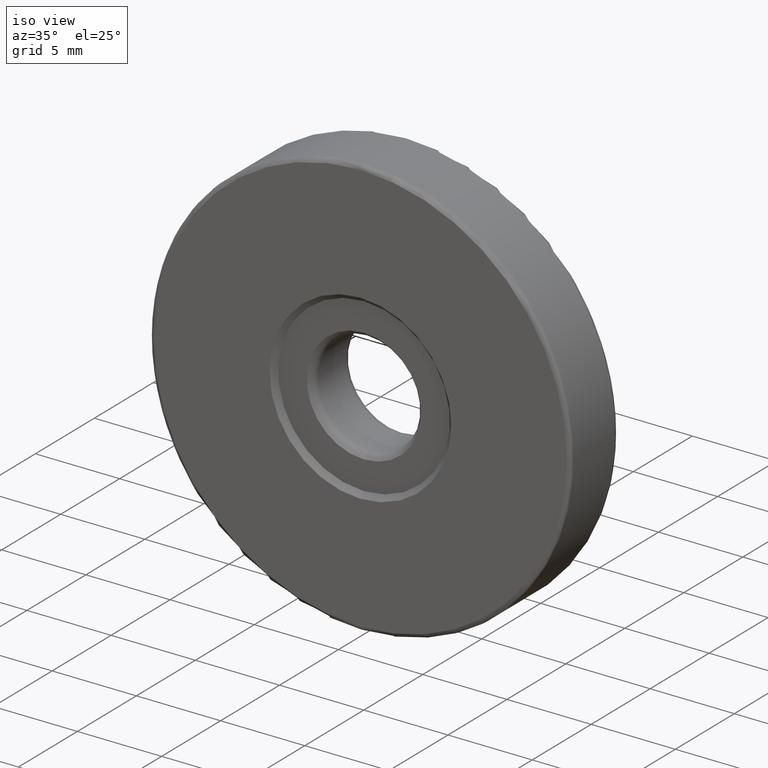
[diagram: clean part render]
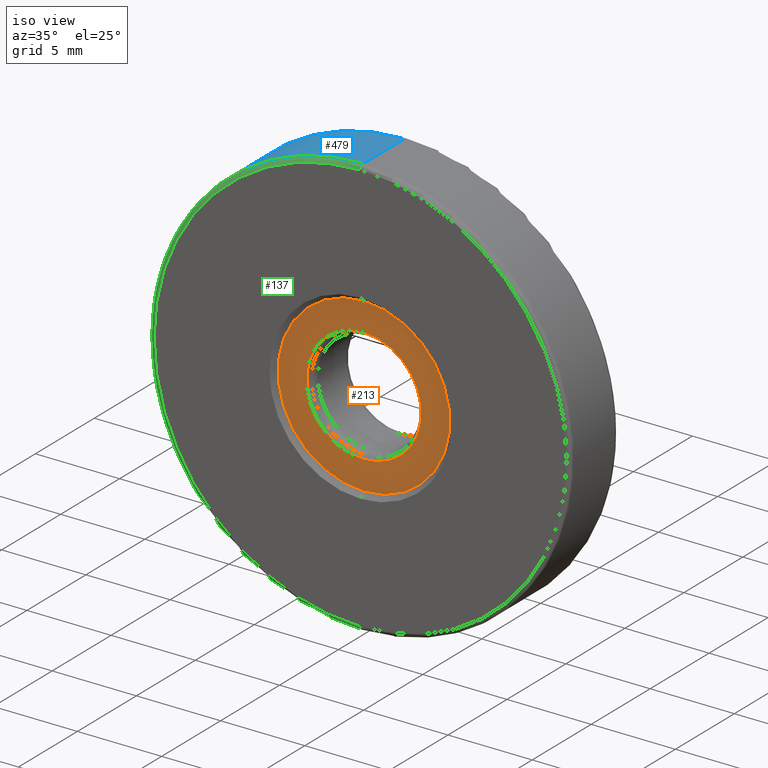
[diagram: same view with three faces highlighted in distinct colors, each labeled with its STEP entity id]
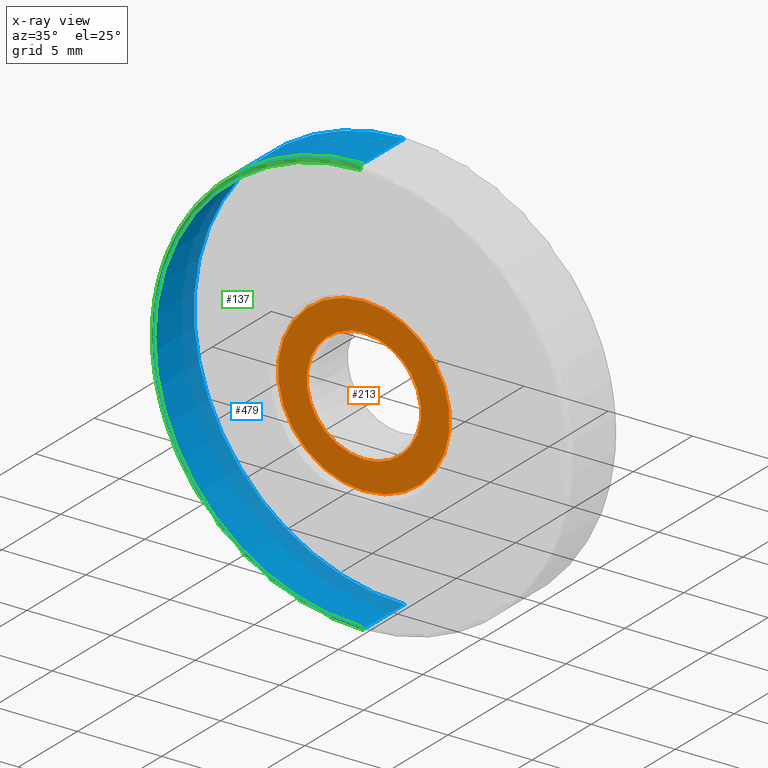
[diagram: x-ray of the same camera — body ghosted, the three highlighted faces saturated]
A machine part, iso view with three faces highlighted in distinct colors.
The next image is the same camera in x-ray (body ghosted, the three faces saturated) — at least one of them is partly hidden behind the body in this view.
Their STEP definitions:

[orange] entity #213 — the highlighted planar face has unit normal (0, -1, 0).
#5 = PLANE ( 'NONE',  #410 ) ;
#42 = CIRCLE ( 'NONE', #526, 5.100000000000000533 ) ;
#44 = CARTESIAN_POINT ( 'NONE',  ( -4.682026255059963837, -3.294975976998275158, 30.10000000000000142 ) ) ;
#68 = CARTESIAN_POINT ( 'NONE',  ( -4.682026255059964726, -3.294975976998275158, 28.40000000000000568 ) ) ;
#96 = CIRCLE ( 'NONE', #275, 3.400000000000003908 ) ;
#112 = FACE_OUTER_BOUND ( 'NONE', #670, .T. ) ;
#120 = CARTESIAN_POINT ( 'NONE',  ( -4.682026255059964726, -3.294975976998275158, 21.59999999999999787 ) ) ;
#160 = VERTEX_POINT ( 'NONE', #544 ) ;
#180 = VERTEX_POINT ( 'NONE', #44 ) ;
#207 = DIRECTION ( 'NONE',  ( -0.0000000000000000000, 1.000000000000000000, -0.0000000000000000000 ) ) ;
#213 = ADVANCED_FACE ( 'NONE', ( #624, #112 ), #5, .T. ) ;
#219 = AXIS2_PLACEMENT_3D ( 'NONE', #309, #245, #531 ) ;
#226 = CARTESIAN_POINT ( 'NONE',  ( -4.682026255059964726, -3.294975976998275158, 25.00000000000000000 ) ) ;
#245 = DIRECTION ( 'NONE',  ( -0.0000000000000000000, 1.000000000000000000, -0.0000000000000000000 ) ) ;
#247 = VERTEX_POINT ( 'NONE', #68 ) ;
#265 = EDGE_LOOP ( 'NONE', ( #636, #379 ) ) ;
#269 = ORIENTED_EDGE ( 'NONE', *, *, #585, .F. ) ;
#275 = AXIS2_PLACEMENT_3D ( 'NONE', #642, #207, #328 ) ;
#277 = CIRCLE ( 'NONE', #219, 3.400000000000003908 ) ;
#288 = DIRECTION ( 'NONE',  ( 0.0000000000000000000, -1.000000000000000000, 0.0000000000000000000 ) ) ;
#304 = CIRCLE ( 'NONE', #690, 5.100000000000000533 ) ;
#309 = CARTESIAN_POINT ( 'NONE',  ( -4.682026255059964726, -3.294975976998275158, 25.00000000000000000 ) ) ;
#328 = DIRECTION ( 'NONE',  ( 0.0000000000000000000, 0.0000000000000000000, -1.000000000000000000 ) ) ;
#347 = CARTESIAN_POINT ( 'NONE',  ( -4.682026255059964726, -3.294975976998275158, 25.00000000000000000 ) ) ;
#379 = ORIENTED_EDGE ( 'NONE', *, *, #538, .T. ) ;
#383 = EDGE_CURVE ( 'NONE', #160, #180, #304, .T. ) ;
#410 = AXIS2_PLACEMENT_3D ( 'NONE', #226, #288, #627 ) ;
#413 = DIRECTION ( 'NONE',  ( 0.0000000000000000000, 0.0000000000000000000, 1.000000000000000000 ) ) ;
#441 = DIRECTION ( 'NONE',  ( -0.0000000000000000000, 1.000000000000000000, -0.0000000000000000000 ) ) ;
#509 = DIRECTION ( 'NONE',  ( 0.0000000000000000000, 0.0000000000000000000, 1.000000000000000000 ) ) ;
#526 = AXIS2_PLACEMENT_3D ( 'NONE', #688, #579, #413 ) ;
#531 = DIRECTION ( 'NONE',  ( 0.0000000000000000000, 0.0000000000000000000, -1.000000000000000000 ) ) ;
#538 = EDGE_CURVE ( 'NONE', #247, #601, #277, .T. ) ;
#544 = CARTESIAN_POINT ( 'NONE',  ( -4.682026255059964726, -3.294975976998275158, 19.90000000000000213 ) ) ;
#579 = DIRECTION ( 'NONE',  ( -0.0000000000000000000, 1.000000000000000000, -0.0000000000000000000 ) ) ;
#585 = EDGE_CURVE ( 'NONE', #180, #160, #42, .T. ) ;
#598 = ORIENTED_EDGE ( 'NONE', *, *, #383, .F. ) ;
#601 = VERTEX_POINT ( 'NONE', #120 ) ;
#624 = FACE_BOUND ( 'NONE', #265, .T. ) ;
#627 = DIRECTION ( 'NONE',  ( 0.0000000000000000000, 0.0000000000000000000, 1.000000000000000000 ) ) ;
#633 = EDGE_CURVE ( 'NONE', #601, #247, #96, .T. ) ;
#636 = ORIENTED_EDGE ( 'NONE', *, *, #633, .T. ) ;
#642 = CARTESIAN_POINT ( 'NONE',  ( -4.682026255059964726, -3.294975976998275158, 25.00000000000000000 ) ) ;
#670 = EDGE_LOOP ( 'NONE', ( #598, #269 ) ) ;
#688 = CARTESIAN_POINT ( 'NONE',  ( -4.682026255059964726, -3.294975976998275158, 25.00000000000000000 ) ) ;
#690 = AXIS2_PLACEMENT_3D ( 'NONE', #347, #441, #509 ) ;

[blue] entity #479 — the highlighted cylindrical surface (partial cylindrical patch) has radius 12.5 mm, axis along (-0, -1, -0).
#23 = DIRECTION ( 'NONE',  ( 0.0000000000000000000, 0.0000000000000000000, 1.000000000000000000 ) ) ;
#27 = AXIS2_PLACEMENT_3D ( 'NONE', #630, #421, #303 ) ;
#35 = CARTESIAN_POINT ( 'NONE',  ( -4.682026255059964726, 0.1550240230017252141, 37.50000000000000711 ) ) ;
#38 = AXIS2_PLACEMENT_3D ( 'NONE', #356, #194, #23 ) ;
#40 = CARTESIAN_POINT ( 'NONE',  ( -4.682026255059962949, -3.344975976998274980, 12.50000000000000000 ) ) ;
#50 = VERTEX_POINT ( 'NONE', #674 ) ;
#76 = DIRECTION ( 'NONE',  ( -0.0000000000000000000, -1.000000000000000000, -0.0000000000000000000 ) ) ;
#88 = DIRECTION ( 'NONE',  ( 0.0000000000000000000, 0.0000000000000000000, 1.000000000000000000 ) ) ;
#128 = VERTEX_POINT ( 'NONE', #40 ) ;
#156 = ORIENTED_EDGE ( 'NONE', *, *, #270, .T. ) ;
#162 = EDGE_CURVE ( 'NONE', #604, #50, #164, .T. ) ;
#164 = LINE ( 'NONE', #320, #671 ) ;
#194 = DIRECTION ( 'NONE',  ( -0.0000000000000000000, -1.000000000000000000, -0.0000000000000000000 ) ) ;
#237 = DIRECTION ( 'NONE',  ( 0.0000000000000000000, 1.000000000000000000, 0.0000000000000000000 ) ) ;
#270 = EDGE_CURVE ( 'NONE', #497, #128, #619, .T. ) ;
#303 = DIRECTION ( 'NONE',  ( 0.0000000000000000000, 0.0000000000000000000, -1.000000000000000000 ) ) ;
#320 = CARTESIAN_POINT ( 'NONE',  ( -4.682026255059962949, 0.4050240230017252419, 37.50000000000000711 ) ) ;
#356 = CARTESIAN_POINT ( 'NONE',  ( -4.682026255059964726, 0.1550240230017252141, 25.00000000000000000 ) ) ;
#359 = CARTESIAN_POINT ( 'NONE',  ( -4.682026255059964726, -3.344975976998274980, 25.00000000000000000 ) ) ;
#407 = FACE_OUTER_BOUND ( 'NONE', #455, .T. ) ;
#411 = AXIS2_PLACEMENT_3D ( 'NONE', #359, #237, #88 ) ;
#420 = ORIENTED_EDGE ( 'NONE', *, *, #551, .T. ) ;
#421 = DIRECTION ( 'NONE',  ( -0.0000000000000000000, -1.000000000000000000, -0.0000000000000000000 ) ) ;
#455 = EDGE_LOOP ( 'NONE', ( #610, #420, #156, #539 ) ) ;
#478 = CIRCLE ( 'NONE', #411, 12.50000000000000355 ) ;
#479 = ADVANCED_FACE ( 'NONE', ( #407 ), #693, .T. ) ;
#497 = VERTEX_POINT ( 'NONE', #582 ) ;
#506 = EDGE_CURVE ( 'NONE', #128, #50, #478, .T. ) ;
#539 = ORIENTED_EDGE ( 'NONE', *, *, #506, .T. ) ;
#540 = DIRECTION ( 'NONE',  ( -0.0000000000000000000, -1.000000000000000000, -0.0000000000000000000 ) ) ;
#551 = EDGE_CURVE ( 'NONE', #604, #497, #660, .T. ) ;
#576 = CARTESIAN_POINT ( 'NONE',  ( -4.682026255059964726, 0.4050240230017252419, 12.50000000000000000 ) ) ;
#582 = CARTESIAN_POINT ( 'NONE',  ( -4.682026255059962949, 0.1550240230017252141, 12.50000000000000000 ) ) ;
#604 = VERTEX_POINT ( 'NONE', #35 ) ;
#610 = ORIENTED_EDGE ( 'NONE', *, *, #162, .F. ) ;
#619 = LINE ( 'NONE', #576, #651 ) ;
#630 = CARTESIAN_POINT ( 'NONE',  ( -4.682026255059964726, 0.4050240230017252419, 25.00000000000000000 ) ) ;
#651 = VECTOR ( 'NONE', #76, 1000.000000000000000 ) ;
#660 = CIRCLE ( 'NONE', #38, 12.50000000000000355 ) ;
#671 = VECTOR ( 'NONE', #540, 1000.000000000000000 ) ;
#674 = CARTESIAN_POINT ( 'NONE',  ( -4.682026255059964726, -3.344975976998274980, 37.50000000000000711 ) ) ;
#693 = CYLINDRICAL_SURFACE ( 'NONE', #27, 12.50000000000000000 ) ;

[green] entity #137 — the highlighted toroidal blend (fillet) surface has major radius 12.25 mm and minor (blend) radius 0.25 mm.
#4 = VERTEX_POINT ( 'NONE', #6 ) ;
#6 = CARTESIAN_POINT ( 'NONE',  ( -4.682026255059964726, -3.594975976998274980, 37.25000000000000711 ) ) ;
#37 = CARTESIAN_POINT ( 'NONE',  ( -4.682026255059964726, -3.344975976998274980, 25.00000000000000000 ) ) ;
#39 = ORIENTED_EDGE ( 'NONE', *, *, #327, .F. ) ;
#40 = CARTESIAN_POINT ( 'NONE',  ( -4.682026255059962949, -3.344975976998274980, 12.50000000000000000 ) ) ;
#50 = VERTEX_POINT ( 'NONE', #674 ) ;
#75 = EDGE_CURVE ( 'NONE', #4, #50, #596, .T. ) ;
#78 = ORIENTED_EDGE ( 'NONE', *, *, #75, .T. ) ;
#88 = DIRECTION ( 'NONE',  ( 0.0000000000000000000, 0.0000000000000000000, 1.000000000000000000 ) ) ;
#89 = DIRECTION ( 'NONE',  ( 0.0000000000000000000, 0.0000000000000000000, 1.000000000000000000 ) ) ;
#103 = FACE_OUTER_BOUND ( 'NONE', #717, .T. ) ;
#128 = VERTEX_POINT ( 'NONE', #40 ) ;
#137 = ADVANCED_FACE ( 'NONE', ( #103 ), #515, .T. ) ;
#172 = DIRECTION ( 'NONE',  ( 0.0000000000000000000, 0.0000000000000000000, -1.000000000000000000 ) ) ;
#192 = CARTESIAN_POINT ( 'NONE',  ( -4.682026255059962949, -3.594975976998274980, 12.75000000000000178 ) ) ;
#211 = DIRECTION ( 'NONE',  ( 0.0000000000000000000, 1.000000000000000000, 0.0000000000000000000 ) ) ;
#237 = DIRECTION ( 'NONE',  ( 0.0000000000000000000, 1.000000000000000000, 0.0000000000000000000 ) ) ;
#267 = AXIS2_PLACEMENT_3D ( 'NONE', #37, #211, #89 ) ;
#283 = CARTESIAN_POINT ( 'NONE',  ( -4.682026255059964726, -3.594975976998274980, 25.00000000000000000 ) ) ;
#290 = CIRCLE ( 'NONE', #640, 0.2500000000000002220 ) ;
#327 = EDGE_CURVE ( 'NONE', #4, #564, #574, .T. ) ;
#331 = AXIS2_PLACEMENT_3D ( 'NONE', #366, #655, #603 ) ;
#359 = CARTESIAN_POINT ( 'NONE',  ( -4.682026255059964726, -3.344975976998274980, 25.00000000000000000 ) ) ;
#366 = CARTESIAN_POINT ( 'NONE',  ( -4.682026255059964726, -3.344975976998274980, 37.25000000000000711 ) ) ;
#390 = DIRECTION ( 'NONE',  ( 1.000000000000000000, -0.0000000000000000000, 1.224646799147353207E-16 ) ) ;
#406 = ORIENTED_EDGE ( 'NONE', *, *, #712, .F. ) ;
#411 = AXIS2_PLACEMENT_3D ( 'NONE', #359, #237, #88 ) ;
#434 = ORIENTED_EDGE ( 'NONE', *, *, #506, .F. ) ;
#478 = CIRCLE ( 'NONE', #411, 12.50000000000000355 ) ;
#506 = EDGE_CURVE ( 'NONE', #128, #50, #478, .T. ) ;
#511 = DIRECTION ( 'NONE',  ( 0.0000000000000000000, 0.0000000000000000000, 1.000000000000000000 ) ) ;
#515 = TOROIDAL_SURFACE ( 'NONE', #267, 12.25000000000000000, 0.2500000000000000000 ) ;
#564 = VERTEX_POINT ( 'NONE', #192 ) ;
#567 = DIRECTION ( 'NONE',  ( -0.0000000000000000000, -1.000000000000000000, -0.0000000000000000000 ) ) ;
#574 = CIRCLE ( 'NONE', #685, 12.25000000000000355 ) ;
#596 = CIRCLE ( 'NONE', #331, 0.2500000000000002220 ) ;
#603 = DIRECTION ( 'NONE',  ( 0.0000000000000000000, 0.0000000000000000000, 1.000000000000000000 ) ) ;
#640 = AXIS2_PLACEMENT_3D ( 'NONE', #665, #390, #172 ) ;
#655 = DIRECTION ( 'NONE',  ( -1.000000000000000000, 0.0000000000000000000, 0.0000000000000000000 ) ) ;
#665 = CARTESIAN_POINT ( 'NONE',  ( -4.682026255059962949, -3.344975976998274980, 12.75000000000000178 ) ) ;
#674 = CARTESIAN_POINT ( 'NONE',  ( -4.682026255059964726, -3.344975976998274980, 37.50000000000000711 ) ) ;
#685 = AXIS2_PLACEMENT_3D ( 'NONE', #283, #567, #511 ) ;
#712 = EDGE_CURVE ( 'NONE', #564, #128, #290, .T. ) ;
#717 = EDGE_LOOP ( 'NONE', ( #406, #39, #78, #434 ) ) ;